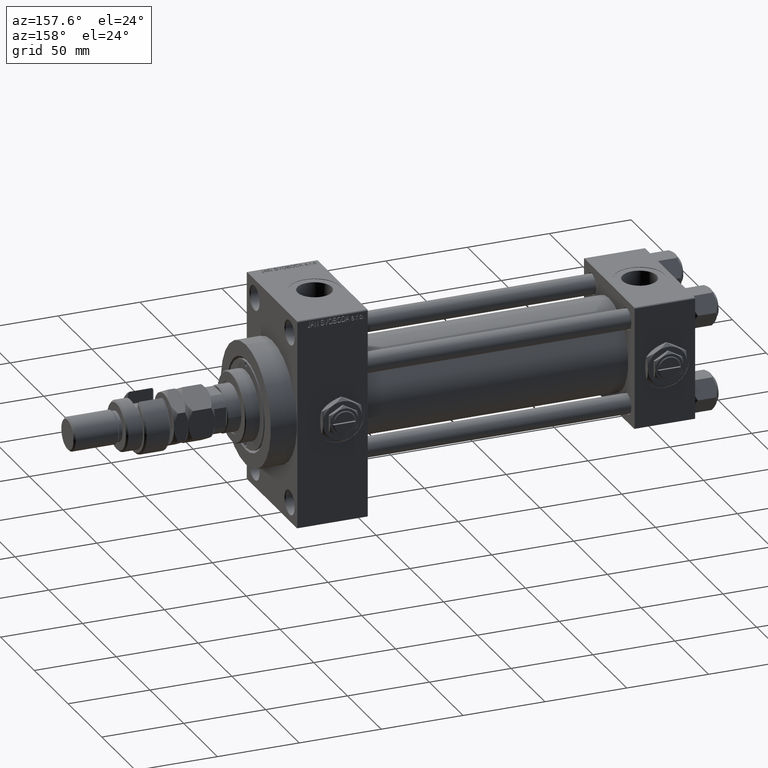
[diagram: clean part render]
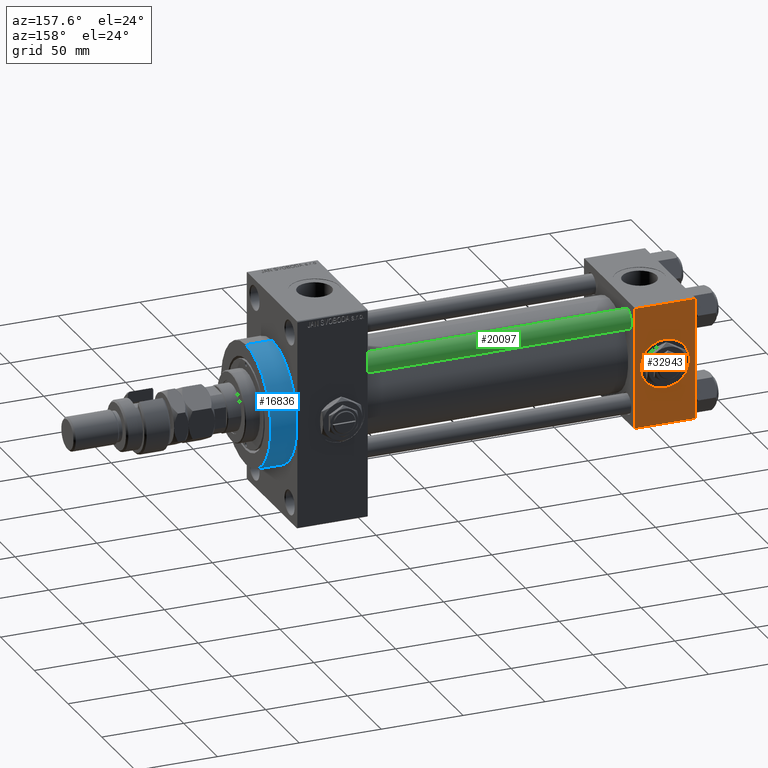
[diagram: same view with three faces highlighted in distinct colors, each labeled with its STEP entity id]
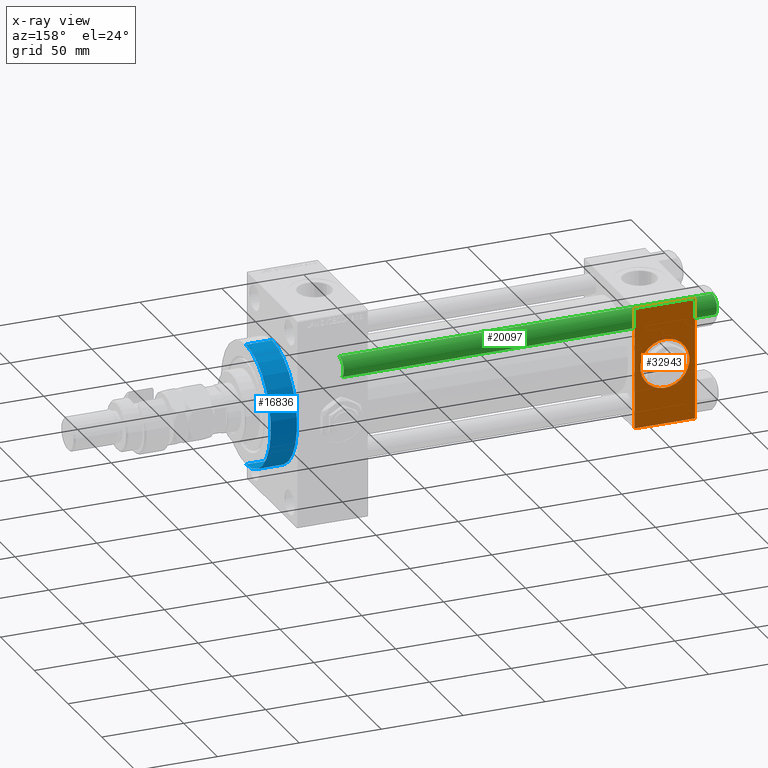
[diagram: x-ray of the same camera — body ghosted, the three highlighted faces saturated]
A machine part, auxiliary view with three faces highlighted in distinct colors.
The next image is the same camera in x-ray (body ghosted, the three faces saturated) — at least one of them is partly hidden behind the body in this view.
Their STEP definitions:

[orange] entity #32943 — the highlighted planar face has unit normal (0, 1, 0).
#72 = VECTOR ( 'NONE', #3561, 1000.000000000000000 ) ;
#674 = CARTESIAN_POINT ( 'NONE',  ( 18.50000000000000000, 37.49999999999999289, 15.00000000000000178 ) ) ;
#1597 = DIRECTION ( 'NONE',  ( 0.000000000000000000, 1.000000000000000000, 0.000000000000000000 ) ) ;
#1845 = CARTESIAN_POINT ( 'NONE',  ( 37.00000000000000000, 37.49999999999999289, -36.99999999999998579 ) ) ;
#3320 = EDGE_LOOP ( 'NONE', ( #13031, #39509, #42957, #13023 ) ) ;
#3561 = DIRECTION ( 'NONE',  ( 1.000000000000000000, 0.000000000000000000, 0.000000000000000000 ) ) ;
#4797 = EDGE_CURVE ( 'NONE', #17771, #35753, #30196, .T. ) ;
#5429 = DIRECTION ( 'NONE',  ( 0.000000000000000000, 0.000000000000000000, -1.000000000000000000 ) ) ;
#7604 = EDGE_CURVE ( 'NONE', #43205, #47368, #20760, .T. ) ;
#7718 = ORIENTED_EDGE ( 'NONE', *, *, #4797, .F. ) ;
#8358 = DIRECTION ( 'NONE',  ( -1.000000000000000000, 0.000000000000000000, 0.000000000000000000 ) ) ;
#9857 = CARTESIAN_POINT ( 'NONE',  ( 0.000000000000000000, 37.49999999999999289, -36.99999999999998579 ) ) ;
#11050 = EDGE_CURVE ( 'NONE', #47368, #11468, #44608, .T. ) ;
#11468 = VERTEX_POINT ( 'NONE', #9857 ) ;
#13023 = ORIENTED_EDGE ( 'NONE', *, *, #15915, .T. ) ;
#13031 = ORIENTED_EDGE ( 'NONE', *, *, #7604, .T. ) ;
#13677 = DIRECTION ( 'NONE',  ( 0.000000000000000000, -0.000000000000000000, 1.000000000000000000 ) ) ;
#15915 = EDGE_CURVE ( 'NONE', #23726, #43205, #23664, .T. ) ;
#17771 = VERTEX_POINT ( 'NONE', #34730 ) ;
#17910 = FACE_OUTER_BOUND ( 'NONE', #3320, .T. ) ;
#18329 = VECTOR ( 'NONE', #47571, 1000.000000000000000 ) ;
#18921 = EDGE_CURVE ( 'NONE', #35753, #17771, #41464, .T. ) ;
#19348 = VECTOR ( 'NONE', #8358, 1000.000000000000000 ) ;
#20380 = PLANE ( 'NONE',  #37001 ) ;
#20719 = CARTESIAN_POINT ( 'NONE',  ( 0.000000000000000000, 37.49999999999999289, 37.00000000000000000 ) ) ;
#20760 = LINE ( 'NONE', #31433, #18329 ) ;
#21187 = AXIS2_PLACEMENT_3D ( 'NONE', #51733, #40066, #35859 ) ;
#21730 = AXIS2_PLACEMENT_3D ( 'NONE', #30178, #1597, #50039 ) ;
#21826 = LINE ( 'NONE', #25000, #30321 ) ;
#21963 = ORIENTED_EDGE ( 'NONE', *, *, #18921, .F. ) ;
#23664 = LINE ( 'NONE', #39812, #72 ) ;
#23726 = VERTEX_POINT ( 'NONE', #20719 ) ;
#25000 = CARTESIAN_POINT ( 'NONE',  ( 0.000000000000000000, 37.49999999999999289, 37.50000000000000000 ) ) ;
#28300 = FACE_BOUND ( 'NONE', #39612, .T. ) ;
#29499 = CARTESIAN_POINT ( 'NONE',  ( 37.00000000000000000, 37.49999999999999289, -36.99999999999998579 ) ) ;
#30178 = CARTESIAN_POINT ( 'NONE',  ( 18.50000000000000000, 37.49999999999999289, 0.000000000000000000 ) ) ;
#30196 = CIRCLE ( 'NONE', #21730, 15.00000000000000178 ) ;
#30321 = VECTOR ( 'NONE', #5429, 1000.000000000000000 ) ;
#31433 = CARTESIAN_POINT ( 'NONE',  ( 37.00000000000000000, 37.49999999999999289, 37.50000000000000000 ) ) ;
#32943 = ADVANCED_FACE ( 'NONE', ( #28300, #17910 ), #20380, .T. ) ;
#34064 = DIRECTION ( 'NONE',  ( -0.000000000000000000, 1.000000000000000000, 0.000000000000000000 ) ) ;
#34730 = CARTESIAN_POINT ( 'NONE',  ( 18.50000000000000355, 37.49999999999999289, -15.00000000000000178 ) ) ;
#35753 = VERTEX_POINT ( 'NONE', #674 ) ;
#35859 = DIRECTION ( 'NONE',  ( 0.000000000000000000, 0.000000000000000000, 1.000000000000000000 ) ) ;
#37001 = AXIS2_PLACEMENT_3D ( 'NONE', #38025, #34064, #13677 ) ;
#38025 = CARTESIAN_POINT ( 'NONE',  ( 37.00000000000000000, 37.49999999999999289, 37.50000000000000000 ) ) ;
#38448 = EDGE_CURVE ( 'NONE', #23726, #11468, #21826, .T. ) ;
#39509 = ORIENTED_EDGE ( 'NONE', *, *, #11050, .T. ) ;
#39612 = EDGE_LOOP ( 'NONE', ( #21963, #7718 ) ) ;
#39812 = CARTESIAN_POINT ( 'NONE',  ( 37.00000000000000000, 37.49999999999999289, 37.00000000000000000 ) ) ;
#40066 = DIRECTION ( 'NONE',  ( 0.000000000000000000, 1.000000000000000000, 0.000000000000000000 ) ) ;
#41464 = CIRCLE ( 'NONE', #21187, 15.00000000000000178 ) ;
#42957 = ORIENTED_EDGE ( 'NONE', *, *, #38448, .F. ) ;
#43205 = VERTEX_POINT ( 'NONE', #51396 ) ;
#44608 = LINE ( 'NONE', #29499, #19348 ) ;
#47368 = VERTEX_POINT ( 'NONE', #1845 ) ;
#47571 = DIRECTION ( 'NONE',  ( 0.000000000000000000, 0.000000000000000000, -1.000000000000000000 ) ) ;
#50039 = DIRECTION ( 'NONE',  ( 0.000000000000000000, 0.000000000000000000, 1.000000000000000000 ) ) ;
#51396 = CARTESIAN_POINT ( 'NONE',  ( 37.00000000000000000, 37.49999999999999289, 37.00000000000000000 ) ) ;
#51733 = CARTESIAN_POINT ( 'NONE',  ( 18.50000000000000000, 37.49999999999999289, 0.000000000000000000 ) ) ;

[blue] entity #16836 — the highlighted cylindrical surface (partial cylindrical patch) has radius 37 mm, axis along (-1, -0, -0).
#1585 = CARTESIAN_POINT ( 'NONE',  ( 259.0000000000000000, 0.000000000000000000, 0.000000000000000000 ) ) ;
#2440 = CARTESIAN_POINT ( 'NONE',  ( 243.0000000000000000, 4.531193156845206793E-15, -37.00000000000000000 ) ) ;
#3976 = DIRECTION ( 'NONE',  ( 1.000000000000000000, 0.000000000000000000, 0.000000000000000000 ) ) ;
#7951 = DIRECTION ( 'NONE',  ( 0.000000000000000000, 0.000000000000000000, -1.000000000000000000 ) ) ;
#8036 = CARTESIAN_POINT ( 'NONE',  ( 259.0000000000000000, 4.531193156845206793E-15, -37.00000000000000000 ) ) ;
#9250 = VECTOR ( 'NONE', #12270, 1000.000000000000000 ) ;
#9371 = EDGE_CURVE ( 'NONE', #25549, #14890, #23493, .T. ) ;
#11237 = DIRECTION ( 'NONE',  ( -1.000000000000000000, -0.000000000000000000, -0.000000000000000000 ) ) ;
#11852 = EDGE_CURVE ( 'NONE', #21420, #23284, #49792, .T. ) ;
#12270 = DIRECTION ( 'NONE',  ( -1.000000000000000000, -0.000000000000000000, -0.000000000000000000 ) ) ;
#12889 = DIRECTION ( 'NONE',  ( 0.000000000000000000, 0.000000000000000000, 1.000000000000000000 ) ) ;
#13453 = EDGE_CURVE ( 'NONE', #21420, #25549, #48525, .T. ) ;
#14890 = VERTEX_POINT ( 'NONE', #34286 ) ;
#16836 = ADVANCED_FACE ( 'NONE', ( #23996 ), #24785, .T. ) ;
#17345 = EDGE_LOOP ( 'NONE', ( #51348, #27401, #33588, #26912 ) ) ;
#17735 = DIRECTION ( 'NONE',  ( 0.000000000000000000, 0.000000000000000000, -1.000000000000000000 ) ) ;
#18522 = AXIS2_PLACEMENT_3D ( 'NONE', #1585, #33361, #17735 ) ;
#19434 = CARTESIAN_POINT ( 'NONE',  ( 259.0000000000000000, 4.531193156845206793E-15, -37.00000000000000000 ) ) ;
#19739 = CARTESIAN_POINT ( 'NONE',  ( 259.0000000000000000, 0.000000000000000000, 37.00000000000000000 ) ) ;
#21420 = VERTEX_POINT ( 'NONE', #19434 ) ;
#23284 = VERTEX_POINT ( 'NONE', #19739 ) ;
#23493 = CIRCLE ( 'NONE', #36982, 37.00000000000000000 ) ;
#23822 = CARTESIAN_POINT ( 'NONE',  ( 243.0000000000000000, 0.000000000000000000, 0.000000000000000000 ) ) ;
#23996 = FACE_OUTER_BOUND ( 'NONE', #17345, .T. ) ;
#24515 = CARTESIAN_POINT ( 'NONE',  ( 259.0000000000000000, 0.000000000000000000, 0.000000000000000000 ) ) ;
#24785 = CYLINDRICAL_SURFACE ( 'NONE', #45747, 37.00000000000000000 ) ;
#25549 = VERTEX_POINT ( 'NONE', #2440 ) ;
#25703 = VECTOR ( 'NONE', #11237, 1000.000000000000000 ) ;
#26912 = ORIENTED_EDGE ( 'NONE', *, *, #27304, .F. ) ;
#27304 = EDGE_CURVE ( 'NONE', #23284, #14890, #27353, .T. ) ;
#27353 = LINE ( 'NONE', #43773, #25703 ) ;
#27401 = ORIENTED_EDGE ( 'NONE', *, *, #13453, .T. ) ;
#33361 = DIRECTION ( 'NONE',  ( 1.000000000000000000, 0.000000000000000000, 0.000000000000000000 ) ) ;
#33588 = ORIENTED_EDGE ( 'NONE', *, *, #9371, .T. ) ;
#34286 = CARTESIAN_POINT ( 'NONE',  ( 243.0000000000000000, 0.000000000000000000, 37.00000000000000000 ) ) ;
#36982 = AXIS2_PLACEMENT_3D ( 'NONE', #23822, #3976, #7951 ) ;
#40665 = DIRECTION ( 'NONE',  ( -1.000000000000000000, -0.000000000000000000, -0.000000000000000000 ) ) ;
#43773 = CARTESIAN_POINT ( 'NONE',  ( 259.0000000000000000, 0.000000000000000000, 37.00000000000000000 ) ) ;
#45747 = AXIS2_PLACEMENT_3D ( 'NONE', #24515, #40665, #12889 ) ;
#48525 = LINE ( 'NONE', #8036, #9250 ) ;
#49792 = CIRCLE ( 'NONE', #18522, 37.00000000000000000 ) ;
#51348 = ORIENTED_EDGE ( 'NONE', *, *, #11852, .F. ) ;

[green] entity #20097 — the highlighted cylindrical surface (edge-blend (fillet) strip) has radius 6 mm, axis along (-1, -0, 0).
#1382 = DIRECTION ( 'NONE',  ( -0.000000000000000000, -0.000000000000000000, 1.000000000000000000 ) ) ;
#1650 = CARTESIAN_POINT ( 'NONE',  ( 0.000000000000000000, 0.000000000000000000, 0.5000000000001392220 ) ) ;
#3636 = EDGE_CURVE ( 'NONE', #45963, #42252, #21324, .T. ) ;
#5089 = CARTESIAN_POINT ( 'NONE',  ( -6.000000000000000888, 0.000000000000000000, 0.5000000000001392220 ) ) ;
#6071 = ORIENTED_EDGE ( 'NONE', *, *, #27581, .T. ) ;
#14538 = CARTESIAN_POINT ( 'NONE',  ( 6.000000000000000888, 7.347880794884119736E-16, 229.0000000000000000 ) ) ;
#15139 = ORIENTED_EDGE ( 'NONE', *, *, #3636, .T. ) ;
#17648 = ORIENTED_EDGE ( 'NONE', *, *, #46599, .T. ) ;
#19370 = DIRECTION ( 'NONE',  ( 1.000000000000000000, 0.000000000000000000, 0.000000000000000000 ) ) ;
#19821 = CIRCLE ( 'NONE', #38419, 6.000000000000000888 ) ;
#20097 = ADVANCED_FACE ( 'NONE', ( #36056 ), #51415, .T. ) ;
#21324 = CIRCLE ( 'NONE', #22202, 6.000000000000000888 ) ;
#22035 = DIRECTION ( 'NONE',  ( 1.000000000000000000, 0.000000000000000000, 0.000000000000000000 ) ) ;
#22202 = AXIS2_PLACEMENT_3D ( 'NONE', #42935, #27027, #19370 ) ;
#23090 = VERTEX_POINT ( 'NONE', #25842 ) ;
#24465 = VERTEX_POINT ( 'NONE', #5089 ) ;
#25842 = CARTESIAN_POINT ( 'NONE',  ( 6.000000000000000888, 7.347880794884119736E-16, 0.5000000000001392220 ) ) ;
#26629 = DIRECTION ( 'NONE',  ( -0.000000000000000000, -0.000000000000000000, -1.000000000000000000 ) ) ;
#27013 = VECTOR ( 'NONE', #26629, 1000.000000000000000 ) ;
#27027 = DIRECTION ( 'NONE',  ( 0.000000000000000000, 0.000000000000000000, -1.000000000000000000 ) ) ;
#27581 = EDGE_CURVE ( 'NONE', #23090, #24465, #19821, .T. ) ;
#28353 = CARTESIAN_POINT ( 'NONE',  ( 0.000000000000000000, 0.000000000000000000, 229.0000000000000000 ) ) ;
#28904 = VECTOR ( 'NONE', #35172, 1000.000000000000000 ) ;
#29675 = AXIS2_PLACEMENT_3D ( 'NONE', #28353, #35810, #43476 ) ;
#32941 = EDGE_LOOP ( 'NONE', ( #15139, #17648, #6071, #41258 ) ) ;
#34164 = CARTESIAN_POINT ( 'NONE',  ( 6.000000000000000888, 7.347880794884119736E-16, 228.5000000000001137 ) ) ;
#34851 = LINE ( 'NONE', #50472, #27013 ) ;
#35172 = DIRECTION ( 'NONE',  ( -0.000000000000000000, -0.000000000000000000, -1.000000000000000000 ) ) ;
#35810 = DIRECTION ( 'NONE',  ( -0.000000000000000000, -0.000000000000000000, -1.000000000000000000 ) ) ;
#36056 = FACE_OUTER_BOUND ( 'NONE', #32941, .T. ) ;
#37304 = EDGE_CURVE ( 'NONE', #45963, #24465, #34851, .T. ) ;
#38419 = AXIS2_PLACEMENT_3D ( 'NONE', #1650, #1382, #22035 ) ;
#41258 = ORIENTED_EDGE ( 'NONE', *, *, #37304, .F. ) ;
#42252 = VERTEX_POINT ( 'NONE', #34164 ) ;
#42935 = CARTESIAN_POINT ( 'NONE',  ( 0.000000000000000000, 0.000000000000000000, 228.5000000000001137 ) ) ;
#43476 = DIRECTION ( 'NONE',  ( -1.000000000000000000, 0.000000000000000000, 0.000000000000000000 ) ) ;
#45963 = VERTEX_POINT ( 'NONE', #50134 ) ;
#46556 = LINE ( 'NONE', #14538, #28904 ) ;
#46599 = EDGE_CURVE ( 'NONE', #42252, #23090, #46556, .T. ) ;
#50134 = CARTESIAN_POINT ( 'NONE',  ( -6.000000000000000888, 0.000000000000000000, 228.5000000000001137 ) ) ;
#50472 = CARTESIAN_POINT ( 'NONE',  ( -6.000000000000000888, 0.000000000000000000, 229.0000000000000000 ) ) ;
#51415 = CYLINDRICAL_SURFACE ( 'NONE', #29675, 6.000000000000000888 ) ;